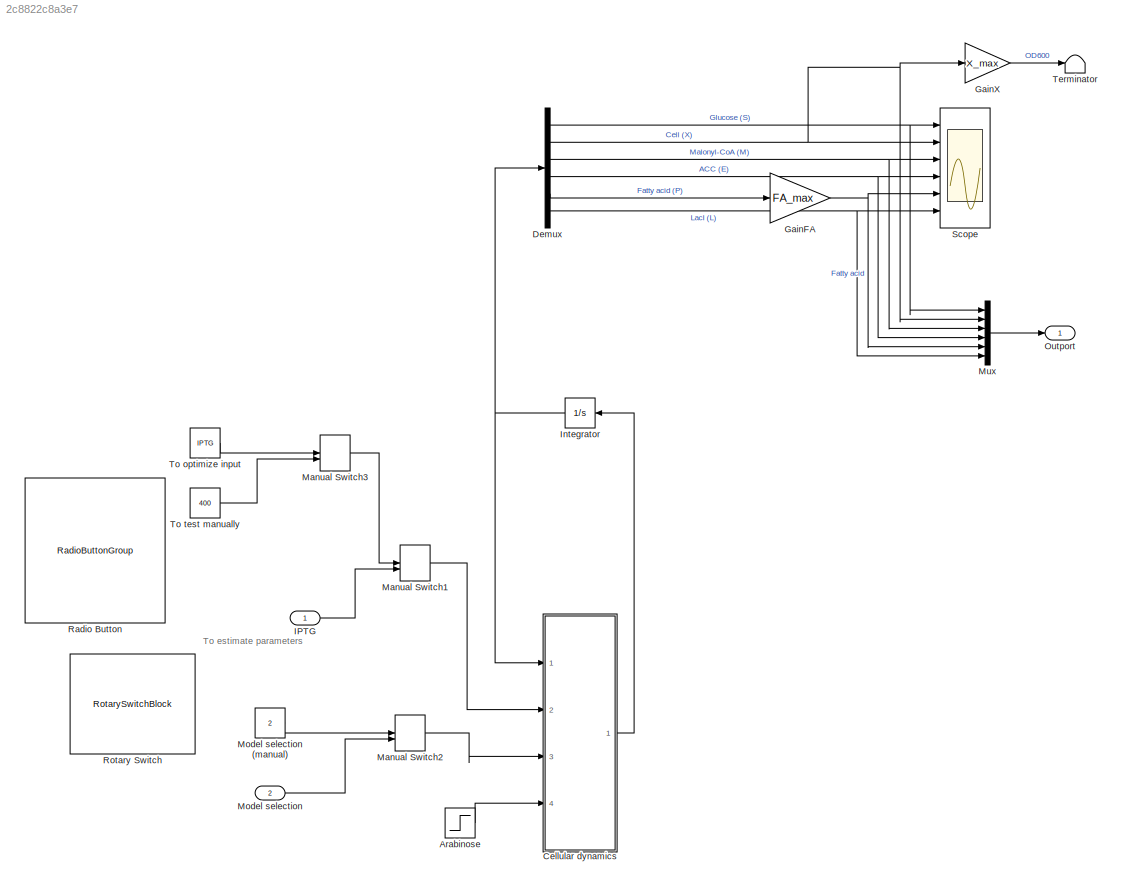
MODEL slx_2c8822c8a3e7
KIND model
CONFIG AbsTol = auto
CONFIG EnableMultiTasking = off
CONFIG FixedStep = auto
CONFIG MaxStep = auto
CONFIG MinStep = auto
CONFIG RelTol = 1e-3
CONFIG SampleTimeConstraint = Unconstrained
CONFIG SolverName = VariableStepAuto
CONFIG StartTime = 0.0
CONFIG StopTime = 69
WORKSPACE source: mxarray member
WORKSPACE E_thr = 1
WORKSPACE FA_max = 0.48425301479
WORKSPACE IPTG = 107.716617457
WORKSPACE K_Emu = 0.458659195396
WORKSPACE K_I = 17.6076376677
WORKSPACE K_M = 0.728317230649
WORKSPACE K_SP = 0.0139720729406
WORKSPACE K_h = 0.344541909046
WORKSPACE L0 = 0.00198440771611
WORKSPACE X0 = 0.110743829145
WORKSPACE X_max = 1.68824792714
WORKSPACE addTime = 8.72622506029
WORKSPACE arabi = 1
WORKSPACE d_E = 0.113136798461
WORKSPACE d_L = 1.386
WORKSPACE k_E = 0.608757875177
WORKSPACE k_L1 = 17.7737712199
WORKSPACE k_L2 = 94.1040932323
WORKSPACE k_M = 0.431387514641
WORKSPACE k_X = 0.463892159998
WORKSPACE mu_d = 0.00763007628191
WORKSPACE n_Emu = 2.79836631259
WORKSPACE n_I = 1.03363188441
WORKSPACE n_L = 0.557575605551
WORKSPACE n_h = 1.13672359686
WORKSPACE tox_mumax = 0.508088241156
BLOCK [Step] Arabinose
  After = arabi
  SampleTime = 0
  Time = addTime
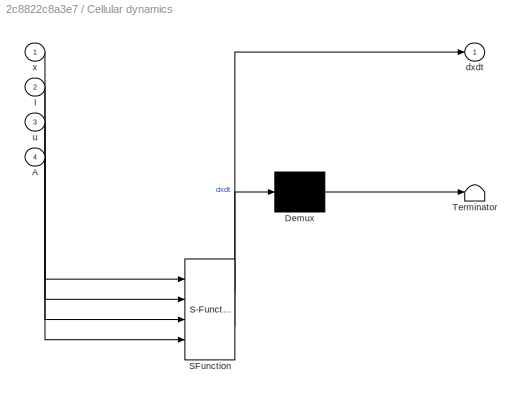
BLOCK [SubSystem] Cellular dynamics
  ErrorFcn = Stateflow.Translate.translate
  PermitHierarchicalResolution = ExplicitOnly
  Ports = [4, 1]
  RequestExecContextInheritance = off
  SFBlockType = MATLAB Function
  TreatAsAtomicUnit = on
BLOCK [Demux] Cellular dynamics/ Demux 
  Outputs = 1
  Ports = [1, 1]
BLOCK [S-Function] Cellular dynamics/ SFunction 
  EnableBusSupport = on
  FunctionName = sf_sfun
  Parameters = E_thr,K_Emu,K_I,K_M,K_SP,K_h,d_E,d_L,k_E,k_L1,k_L2,k_M,k_X,mu_d,n_Emu,n_I,n_L,n_h,tox_mumax
  PortCounts = [4 2]
  Ports = [4, 2]
  SFcnIsStateOwnerBlock = off
  SFunctionDeploymentMode = off
  Tag = Stateflow S-Function 2
BLOCK [Terminator] Cellular dynamics/ Terminator 
BLOCK [Inport] Cellular dynamics/A
  Port = 4
BLOCK [Inport] Cellular dynamics/I
  Port = 2
BLOCK [Outport] Cellular dynamics/dxdt
BLOCK [Inport] Cellular dynamics/u
  Port = 3
BLOCK [Inport] Cellular dynamics/x
BLOCK [Demux] Demux
  Outputs = 6
  Ports = [1, 6]
BLOCK [Gain] GainFA
  Gain = FA_max
BLOCK [Gain] GainX
  Gain = X_max
BLOCK [Inport] IPTG
BLOCK [Integrator] Integrator
  InitialCondition = [1 - X0; X0; 0; 0; 0; L0]
  Ports = [1, 1]
BLOCK [ManualSwitch] Manual Switch1
  CurrentSetting = 0
BLOCK [ManualSwitch] Manual Switch2
BLOCK [ManualSwitch] Manual Switch3
  CurrentSetting = 0
BLOCK [Inport] Model selection
  Port = 2
BLOCK [Constant] Model selection (manual)
  Value = 2
BLOCK [Mux] Mux
  DisplayOption = bar
  Inputs = 6
  Ports = [6, 1]
BLOCK [Outport] Outport
BLOCK [RadioButtonGroup] Radio Button
  ButtonGroupName = Group
  SelectedLabel = 400
BLOCK [RotarySwitchBlock] Rotary Switch
BLOCK [Scope] Scope
  Floating = off
  NumInputPorts = 6
  Ports = [6]
  ScopeSpecificationString = Simulink.scopes.TimeScopeBlockCfg('CurrentConfiguration', extmgr.ConfigurationSet(extmgr.Configuration('Core','General UI',true),extmgr.Configuration('Core','Source UI',true),extmgr.Configuration('Sources','WiredSimulink',true),extmgr.Configuration('Visuals','Time Domain',true,'TimeAxisLabels','All','SerializedDisplays',{struct('MinYLimReal','0','MaxYLimReal','1','YLabelReal','','MinYLimMag','0.00...<+5827ch>
BLOCK [Terminator] Terminator
BLOCK [Constant] To optimize input
  Value = IPTG
  VectorParams1D = off
BLOCK [Constant] To test manually
  Value = 400
ANNOTATION (root): To estimate parameters
LINE Arabinose:1 -> Cellular dynamics:4
LINE Cellular dynamics:1 -> Integrator:1
NET Demux:1 -> Mux:1, Scope:1
NET Demux:2 -> GainX:1, Mux:2, Scope:2
NET Demux:3 -> Mux:3, Scope:3
NET Demux:4 -> Mux:4, Scope:4
LINE Demux:5 -> GainFA:1
NET Demux:6 -> Mux:6, Scope:6
NET GainFA:1 -> Mux:5, Scope:5
LINE GainX:1 -> Terminator:1
LINE IPTG:1 -> Manual Switch1:2
NET Integrator:1 -> Cellular dynamics:1, Demux:1
LINE Manual Switch1:1 -> Cellular dynamics:2
LINE Manual Switch2:1 -> Cellular dynamics:3
LINE Manual Switch3:1 -> Manual Switch1:1
LINE Model selection (manual):1 -> Manual Switch2:1
LINE Model selection:1 -> Manual Switch2:2
LINE Mux:1 -> Outport:1
LINE To optimize input:1 -> Manual Switch3:1
LINE To test manually:1 -> Manual Switch3:2
note: NET lines group one-source signal fan-out (src -> all destinations, sorted); 1:1 wires keep LINE
CHART Cellular dynamics states=1 transitions=1
  STATE_LABEL 'eML_blk_kernel()'
  STATE_LABEL 'SCRIPT:\nfunction dxdt = StateFcn(x,I,u,A,k_X, mu_d, d_E, k_E, K_SP, k_M, d_L, k_L1, k_L2, tox_mumax, K_Emu, n_Emu, E_thr, K_h, n_h, K_I, n_I, n_L, K_M)\n%% Inputs\n% I = 103;\n% P(T7) response is \n% 0.2 @  40 uM\n% 0.4 @ 100 uM\n\n% u = 1; % 1 is FA3, 2 is FA2\n\n%% Parameters\n% k_X = 0.5;\n% mu_d = 0.01; % cell death rate\n% d_E = 0.20; % from [Xu,2020]\n% k_E = 1;\n% K_SP = 0.01;\n% \n% % these two parameters...<+1248ch>'
CHART  states=0 transitions=0
